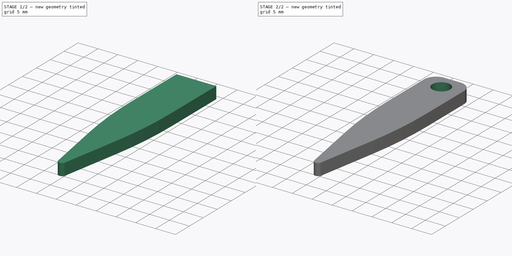
[diagram: build sequence overview — one tinted view per stage of 2, left to right]
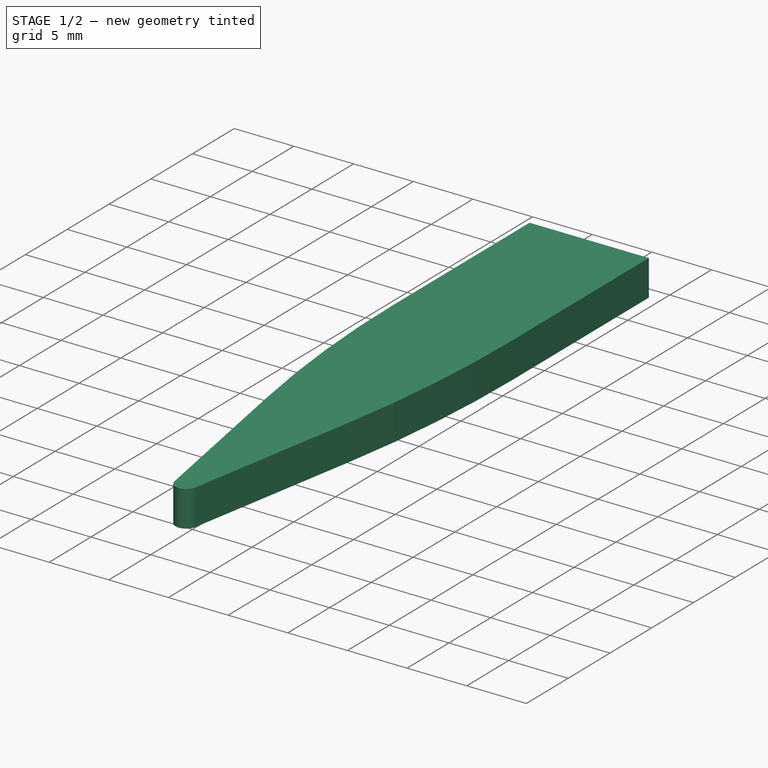
[diagram: stage 1 of 2 — iso view after this stage's code; geometry added in this stage tinted green]
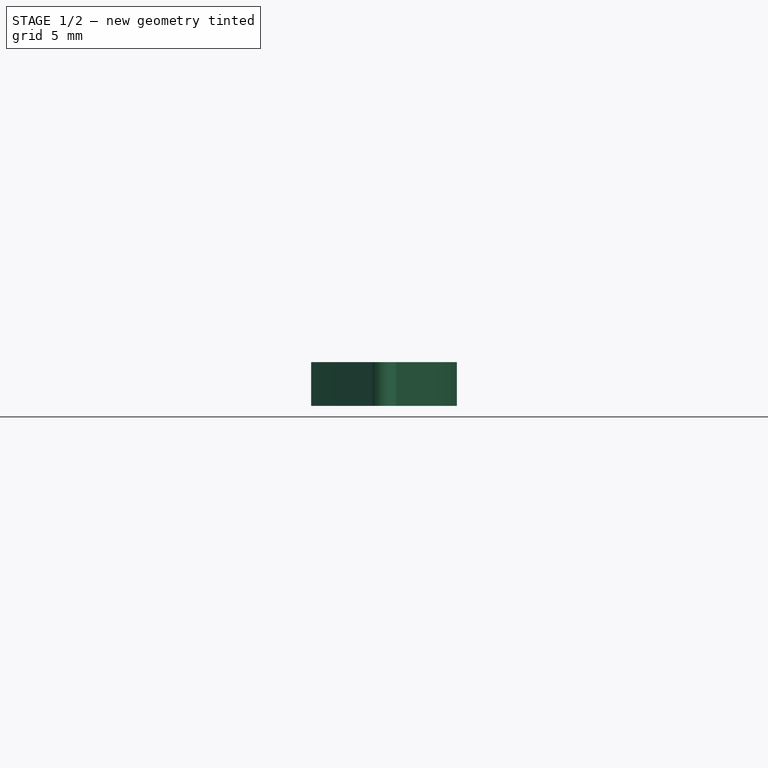
[diagram: stage 1 of 2 — front view after this stage's code; geometry added in this stage tinted green]
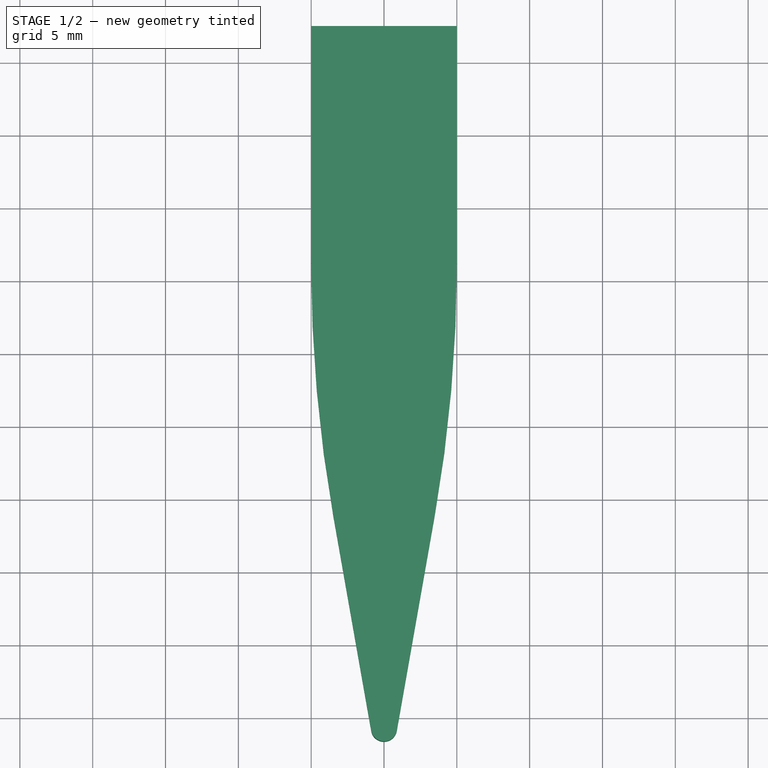
[diagram: stage 1 of 2 — top view after this stage's code; geometry added in this stage tinted green]
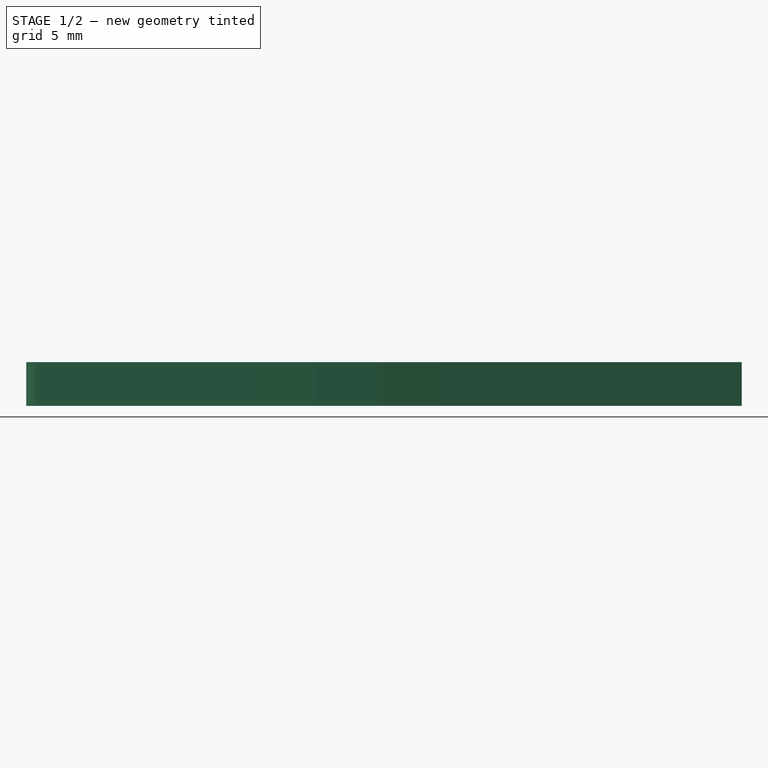
[diagram: stage 1 of 2 — right view after this stage's code; geometry added in this stage tinted green]
FCSTD DOCUMENT  (FreeCAD 0.18R4 (GitTag))
Label: part2
License: All rights reserved
LicenseURL: http://en.wikipedia.org/wiki/All_rights_reserved
objects: Sketcher::SketchObject×2, PartDesign::Fillet×2, PartDesign::Pad×1, PartDesign::Pocket×1, PartDesign::Body×1
note: 9 computed .brp shape members not serialized (recipe doc carries the construction recipe); baked Part::Feature solids carry a one-line shape summary decoded from their .brp

FEATURE [Sketcher::SketchObject] Sketch
  MapMode = 5
  Support = -> [XY_Plane]
  sketch-geometry (6):
    g0: LineSegment StartX=-5 StartY=12.5 StartZ=0 EndX=5 EndY=12.5 EndZ=0
    g1: LineSegment StartX=5 StartY=12.5 StartZ=0 EndX=5 EndY=-12.5 EndZ=0
    g2: LineSegment StartX=-5 StartY=-12.5 StartZ=0 EndX=-5 EndY=12.5 EndZ=0
    g3: LineSegment StartX=-5 StartY=-12.5 StartZ=0 EndX=-0.877121 EndY=-35.882 EndZ=0
    g4: LineSegment StartX=0.877121 StartY=-35.882 StartZ=0 EndX=5 EndY=-12.5 EndZ=0
    g5: ArcOfCircle CenterX=1e-16 CenterY=-35.7273 CenterZ=0 NormalX=0 NormalY=0 NormalZ=1 AngleXU=0 Radius=0.890652 StartAngle=3.31613 EndAngle=6.10865
  constraints (15):
    c: Coincident(g0,g1)
    c: Coincident(g2,g0)
    c: Vertical(g2)
    c: Coincident(g4,g1)
    c: DistanceX(g0,g0) = 10
    c: Symmetric(g0,g0,g-2)
    c: Symmetric(g1,g0,g-1)
    c: Angle(g3,g2) = 2.96706
    c: Angle(g1,g4) = 2.96706
    c: Equal(g3,g4)
    c: Coincident(g5,g4)
    c: Coincident(g5,g3)
    c: Equal(g2,g1)
    c: Coincident(g3,g2)
    c: DistanceY(g1,g1) = 25
FEATURE [PartDesign::Pad] Pad
  Length = 3
  Length2 = 100
  Profile = -> Sketch
  Type = 0
FEATURE [PartDesign::Fillet] Fillet
  Base = -> Pad [Edge5,Edge14]
  BaseFeature = -> Pad
  Radius = 100
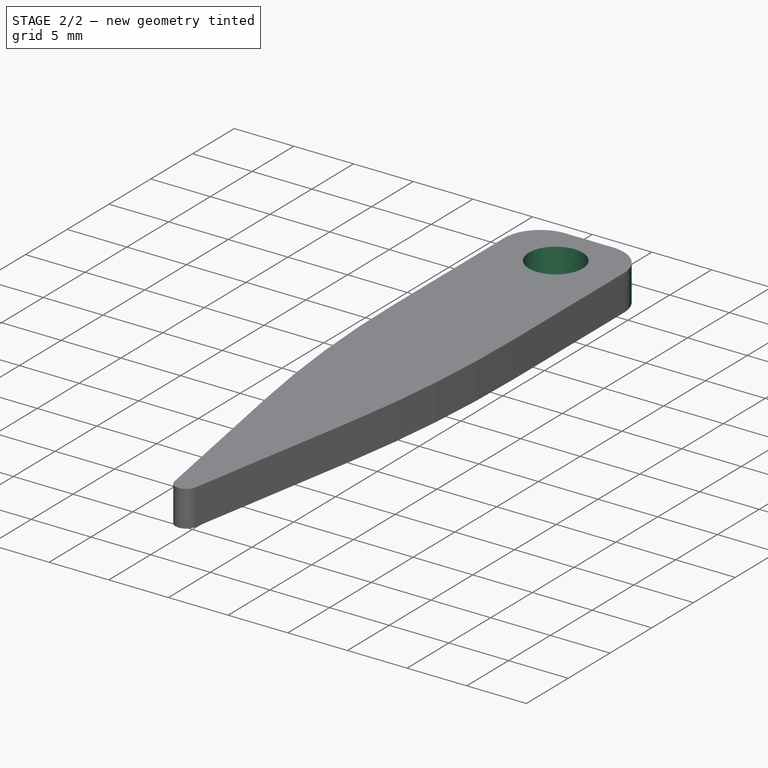
[diagram: stage 2 of 2 — iso view after this stage's code; geometry added in this stage tinted green]
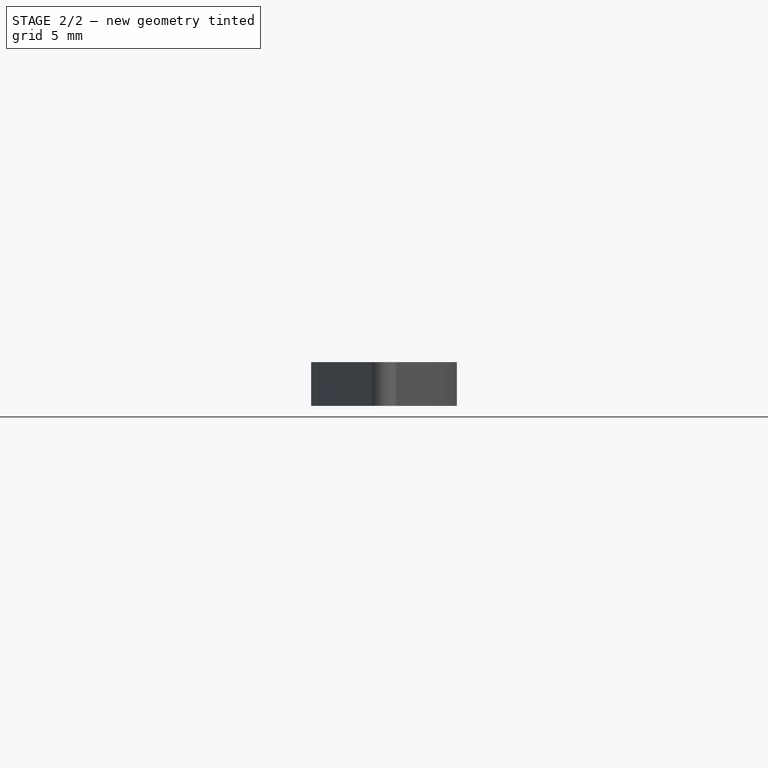
[diagram: stage 2 of 2 — front view after this stage's code; geometry added in this stage tinted green]
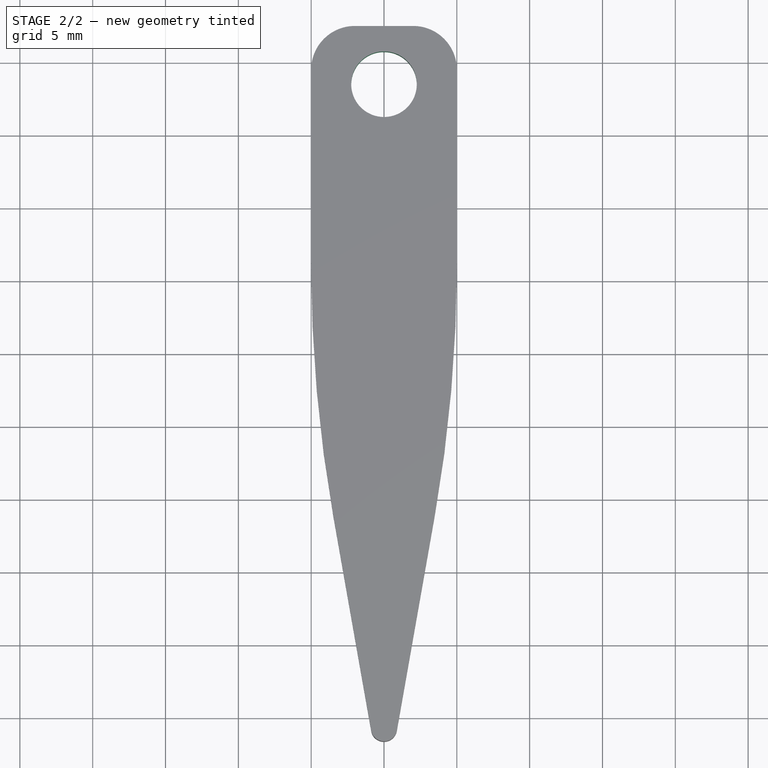
[diagram: stage 2 of 2 — top view after this stage's code; geometry added in this stage tinted green]
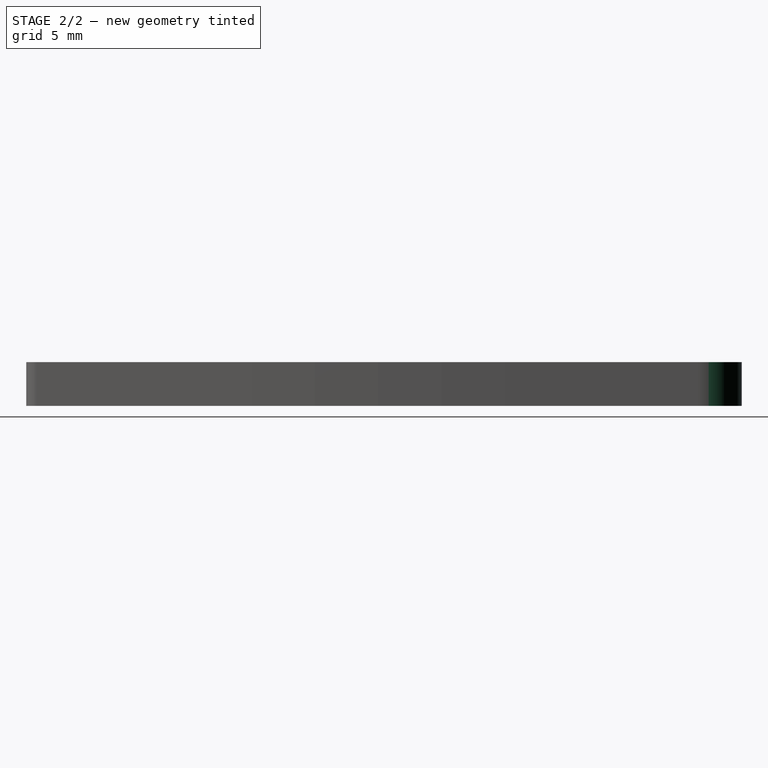
[diagram: stage 2 of 2 — right view after this stage's code; geometry added in this stage tinted green]
FEATURE [PartDesign::Fillet] Fillet001
  Base = -> Fillet [Edge3,Edge14]
  BaseFeature = -> Fillet
  Radius = 3
FEATURE [Sketcher::SketchObject] Sketch001
  ExternalGeometry = -> [Fillet001]
  MapMode = 5
  Placement = pos=(0,0,3) rot=(0,0,1;0rad)
  Support = -> [Fillet001]
  sketch-geometry (1):
    g0: Circle CenterX=0 CenterY=8.5 CenterZ=0 NormalX=0 NormalY=0 NormalZ=1 AngleXU=0 Radius=2.25
  constraints (3):
    c: PointOnObject(g0,g-2)
    c: Radius(g0) = 2.25
    c: DistanceY(g0,g-3) = 4
FEATURE [PartDesign::Pocket] Pocket
  BaseFeature = -> Fillet001
  Length = 5
  Length2 = 100
  Profile = -> Sketch001
  Type = 0
FEATURE [PartDesign::Body] Body
  Group = -> [Sketch,Pad,Fillet,Fillet001,Sketch001,Pocket]
  Origin = -> Origin
  Tip = -> Pocket
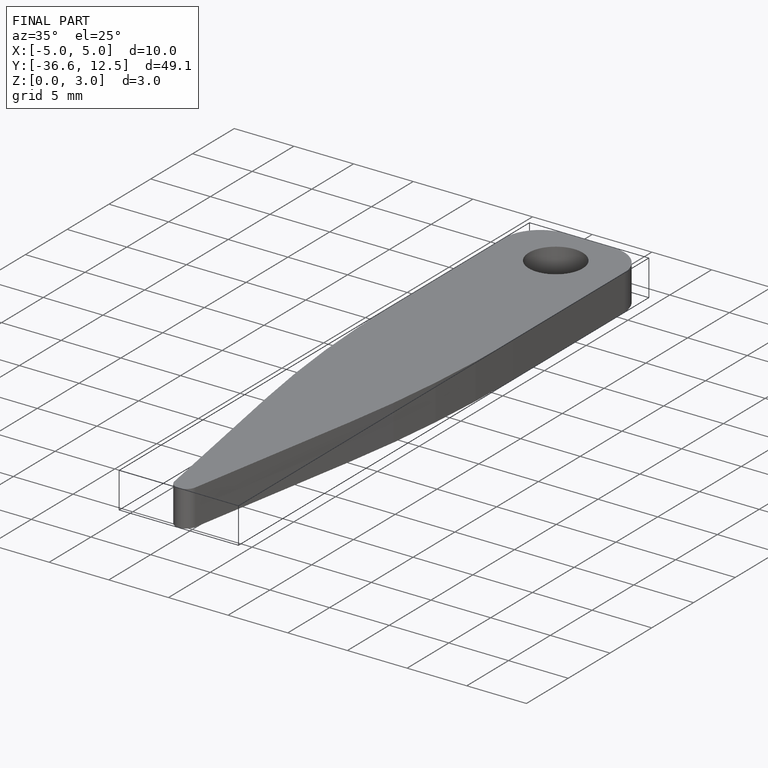
[diagram: finished part — iso view with bounding-box wireframe]
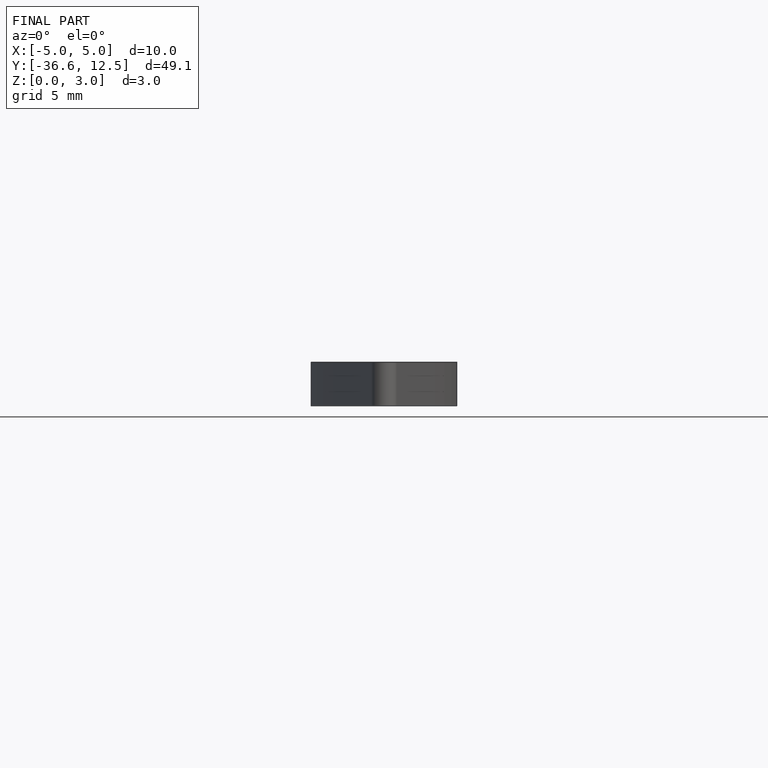
[diagram: finished part — front view with bounding-box wireframe]
